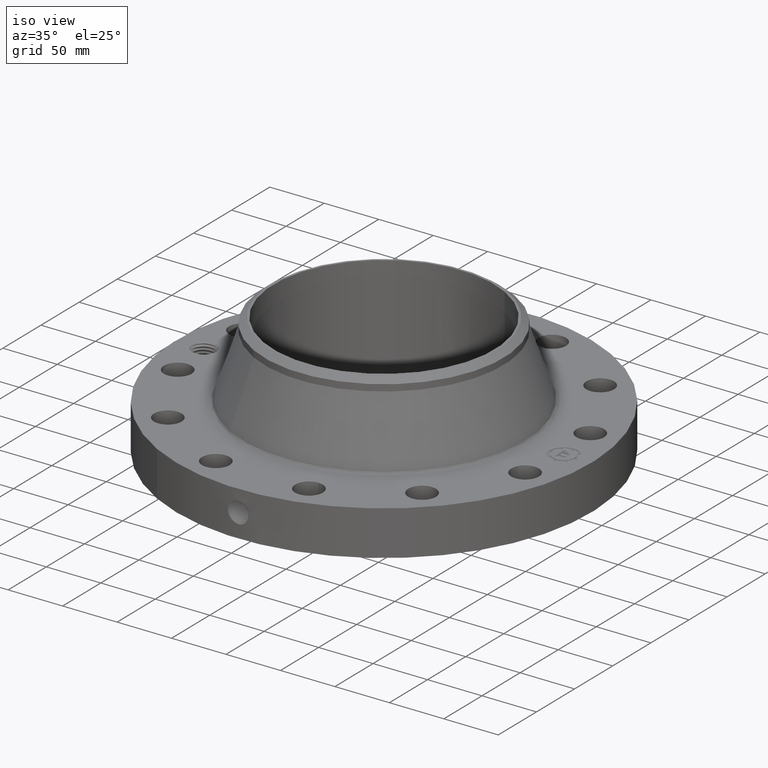
[diagram: clean part render]
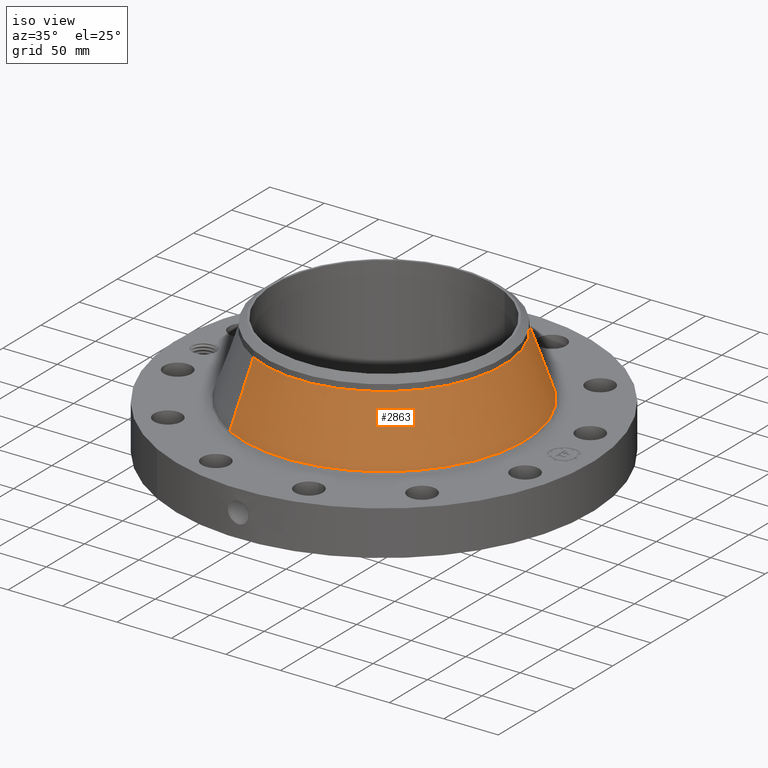
[diagram: same view with one face highlighted and labeled with its STEP entity id]
A machine part, iso view. The second image highlights one B-rep face of the part: STEP entity #2863.
In plain terms, the highlighted conical surface has half-angle 19.13 deg.
Its self-contained STEP definition (entity closure, byte-faithful):
#2101=AXIS2_PLACEMENT_3D('Circle Axis2P3D',#2099,#2100,$) ;
#2836=AXIS2_PLACEMENT_3D('Cone Axis2P3D',#2833,#2834,#2835) ;
#2847=AXIS2_PLACEMENT_3D('Circle Axis2P3D',#2845,#2846,$) ;
#2096=CARTESIAN_POINT('Vertex',(2.44363999991,4.47305301612,1.76067472505)) ;
#2099=CARTESIAN_POINT('Axis2P3D Location',(0.,0.,1.76067472505)) ;
#2103=CARTESIAN_POINT('Vertex',(-2.44363999991,-4.47305301612,1.76067472505)) ;
#2833=CARTESIAN_POINT('Axis2P3D Location',(0.,0.,4.01520136785)) ;
#2838=CARTESIAN_POINT('Line Origine',(2.2561805995,4.12991088535,2.88793804645)) ;
#2842=CARTESIAN_POINT('Vertex',(2.06872119909,3.78676875457,4.01520136785)) ;
#2845=CARTESIAN_POINT('Axis2P3D Location',(0.,0.,4.01520136785)) ;
#2849=CARTESIAN_POINT('Vertex',(-2.06872119909,-3.78676875457,4.01520136785)) ;
#2852=CARTESIAN_POINT('Line Origine',(-2.2561805995,-4.12991088535,2.88793804645)) ;
#2100=DIRECTION('Axis2P3D Direction',(0.,0.,-0.0393700787402)) ;
#2834=DIRECTION('Axis2P3D Direction',(0.,0.,-0.0393700787402)) ;
#2835=DIRECTION('Axis2P3D XDirection',(-0.0188750212049,-0.0345504945626,0.)) ;
#2839=DIRECTION('Vector Direction',(0.00618554498858,0.0113225641537,-0.0371959900283)) ;
#2846=DIRECTION('Axis2P3D Direction',(0.,0.,-0.0393700787402)) ;
#2853=DIRECTION('Vector Direction',(-0.00618554498858,-0.0113225641537,-0.0371959900283)) ;
#2840=VECTOR('Line Direction',#2839,0.0393700787402) ;
#2854=VECTOR('Line Direction',#2853,0.0393700787402) ;
#2858=ORIENTED_EDGE('',*,*,#2105,.F.) ;
#2859=ORIENTED_EDGE('',*,*,#2844,.T.) ;
#2860=ORIENTED_EDGE('',*,*,#2851,.T.) ;
#2861=ORIENTED_EDGE('',*,*,#2856,.F.) ;
#2863=ADVANCED_FACE('PartBody',(#2862),#2837,.T.) ;
#2102=CIRCLE('generated circle',#2101,5.09701674847) ;
#2848=CIRCLE('generated circle',#2847,4.31500000002) ;
#2837=CONICAL_SURFACE('Cone',#2836,4.31500000002,0.333879365211) ;
#2105=EDGE_CURVE('',#2097,#2104,#2102,.T.) ;
#2844=EDGE_CURVE('',#2097,#2843,#2841,.F.) ;
#2851=EDGE_CURVE('',#2843,#2850,#2848,.T.) ;
#2856=EDGE_CURVE('',#2104,#2850,#2855,.F.) ;
#2857=EDGE_LOOP('',(#2858,#2859,#2860,#2861)) ;
#2862=FACE_OUTER_BOUND('',#2857,.T.) ;
#2841=LINE('Line',#2838,#2840) ;
#2855=LINE('Line',#2852,#2854) ;
#2097=VERTEX_POINT('',#2096) ;
#2104=VERTEX_POINT('',#2103) ;
#2843=VERTEX_POINT('',#2842) ;
#2850=VERTEX_POINT('',#2849) ;